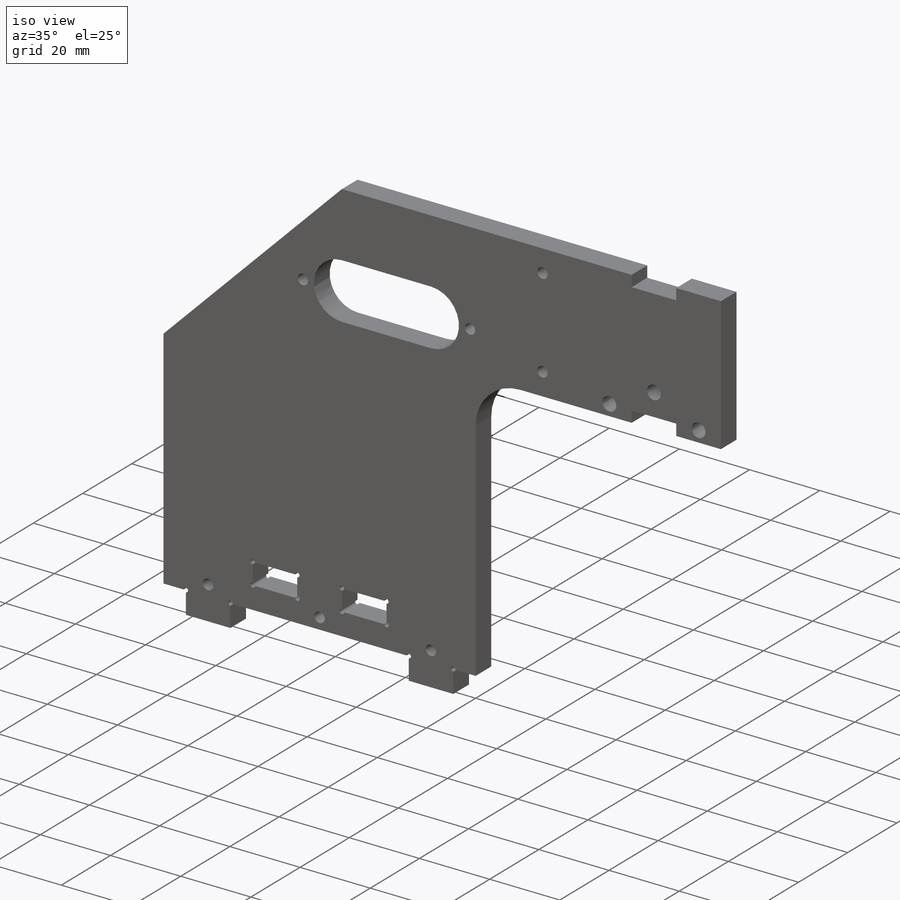
[diagram: iso view]
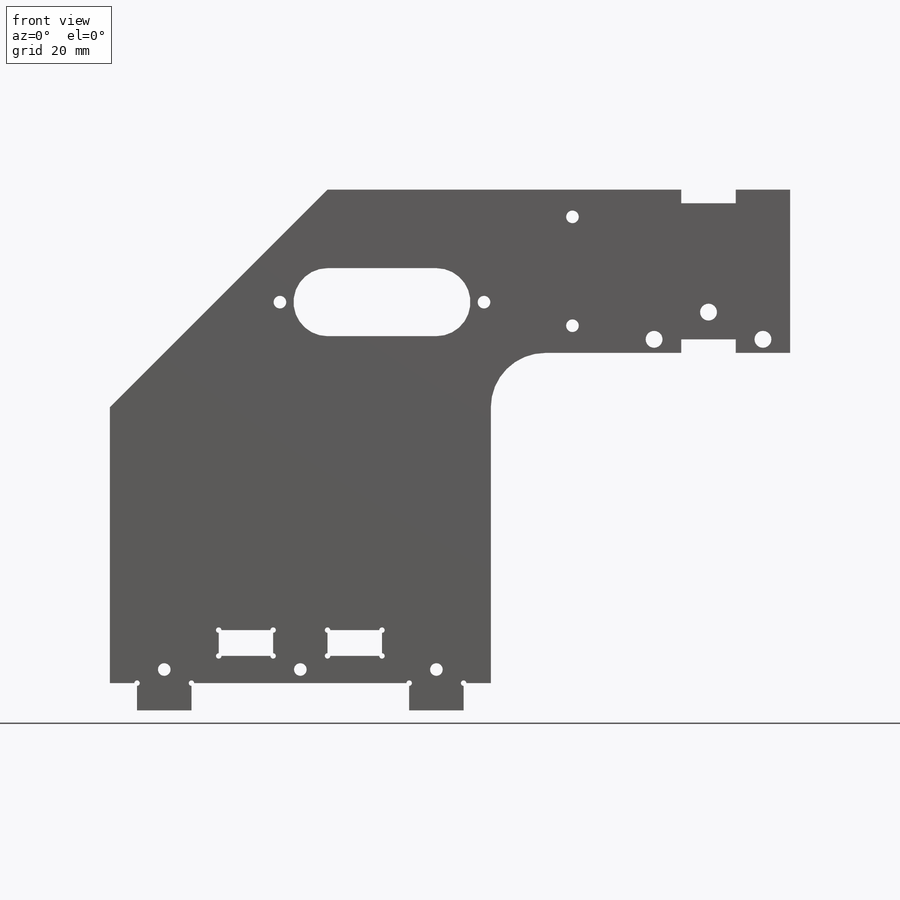
[diagram: front view]
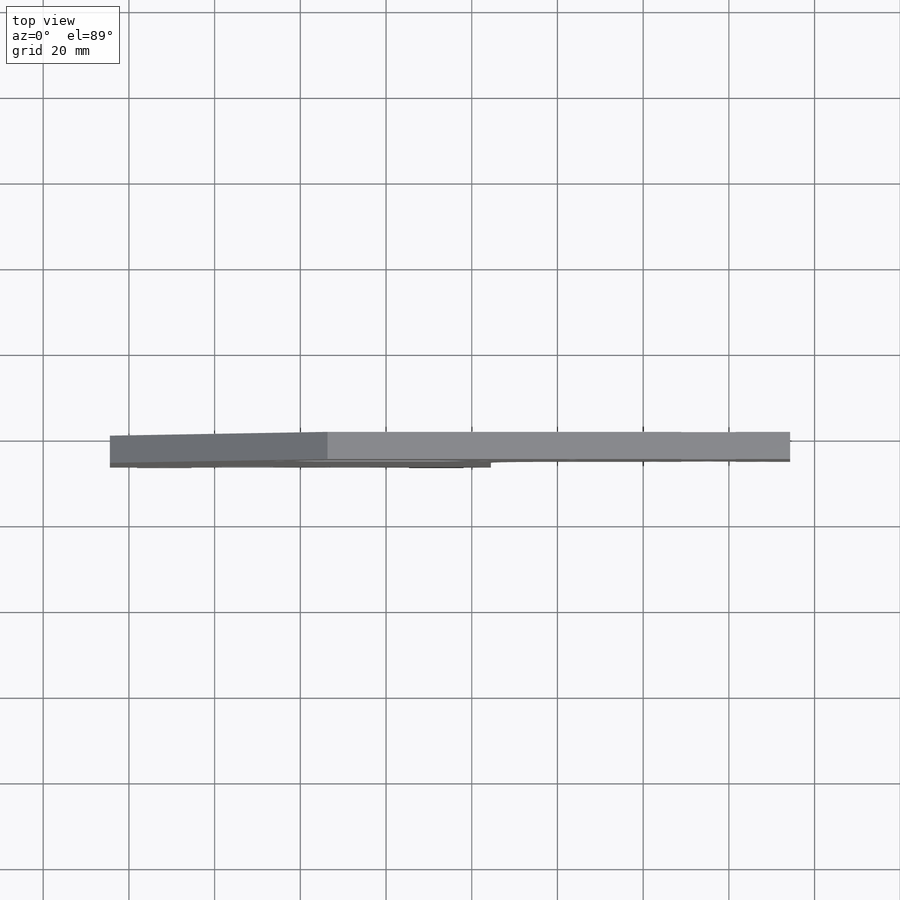
[diagram: top view]
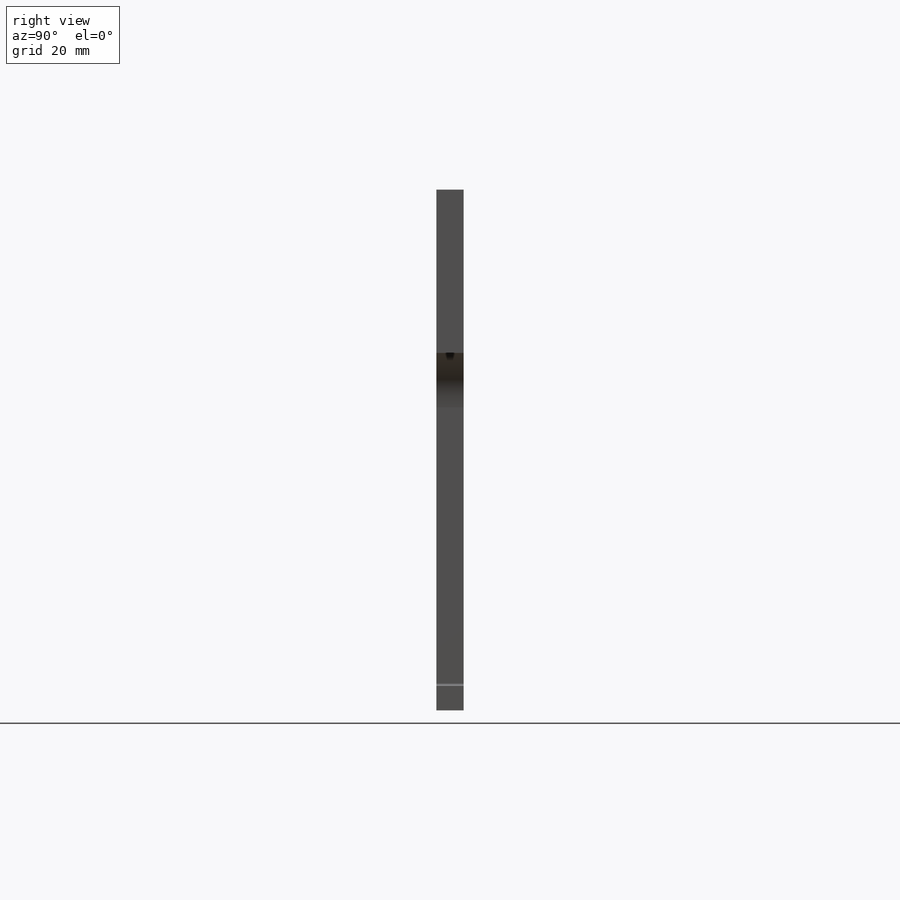
[diagram: right view]
SOLIDWORKS PART (.sldprt)
format: sldprt  version: not decoded by parser v0  size: 522,752 bytes
history: native  units: mm
features: sketch x13, cut_extrude x3, hole x3, material x1, extrude x1, chamfer x1, fillet x1 + 1 further entry (+12 scaffold rows collapsed)
feature tree (36):
  scaffold x12  (default folders/planes/origin — collapsed)
  material  "Acrylic (Medium-high impact)"
  sketch  "Sketch1"  dims[c1.D19=25.4mm c1.D20=1.27mm c1.D21=0.635mm c1.D1=6.35mm c1.D2=6.35mm c1.D3=12.7mm c1.D4=12.7mm c1.D5=50.8mm c1.D6=25.4mm c1.D7=25.4mm c1.D8=25.4mm c1.D9=31.75mm c1.D10=25.4mm c1.D11=25.4mm c1.D12=38.1mm c1.D13=38.1mm c1.D14=42.0mm c1.D15=42.0mm c1.D16=22.352mm c2.D6=38.1mm c2.D17=19.05mm c3.D6=6.35mm c3.D18=6.35mm c3.D21=25.4mm c3.D19=57.15mm c4.D6=6.35mm c4.D19=12.7mm c4.D21=6.0198mm c4.D22=3.175mm c4.D23=12.7mm c4.D24=6.35mm c4.D25=12.7mm c4.D26=3.175mm c4.D3=12.7mm c5.D6=6.35mm c5.D18=6.35mm c5.D20=6.0198mm c5.D19=6.35mm c5.D21=19.05mm c5.D27=12.7mm c5.D28=12.7mm c5.D29=25.4mm]
  extrude  "Boss-Extrude1"  Depth=6.35mm
  sketch  "Sketch10"  dims[D1=1.27mm]
  sketch  "Sketch13"  dims[D1=1.27mm]
  cut_extrude  "Cut-Extrude2"  [1 undecoded]
  "Sketch-Pattern1"
  chamfer  "Chamfer1"  Distance=50.8mm Angle=45deg
  fillet  "Fillet2"  Radius=12.7mm
  sketch  "Sketch5"  dims[D1=6.35mm D2=6.35mm D3=0.254mm]
  hole  "#4 Clearance Hole1"  Diameter=2.9464mm Depth=6.35mm
  sketch  "Sketch7"
  sketch  "Sketch6"  dims[hole-wizard template sketch: 50 standard entries collapsed; hole parameters above]
  sketch  "Sketch8"  dims[D1=50.8mm D2=6.35mm D3=6.35mm D4=25.4mm D5=6.35mm]
  sketch  "Sketch14"  dims[c1.D2=3.937mm c1.D3=3.9624mm c1.D4=3.9624mm c1.D5=5.588mm c1.D1=38.1mm c2.D3=9.525mm c2.D4=25.4mm]
  cut_extrude  "Cut-Extrude3"  [1 undecoded]
  hole  "#4 Clearance Hole2"  Diameter=2.9464mm Depth=6.35mm
  sketch  "Sketch17"
  sketch  "Sketch16"  dims[hole-wizard template sketch: 50 standard entries collapsed; hole parameters above]
  sketch  "Sketch18"  dims[c1.D1=25.4mm c1.D2=15.875mm c1.D3=63.5mm c1.D4=12.7mm c2.D3=88.9mm c2.D4=19.05mm]
  cut_extrude  "Cut-Extrude4"  [1 undecoded]
  hole  "#4 Clearance Hole3"  Diameter=2.9464mm Depth=6.35mm
  sketch  "Sketch20"  dims[D1=3.175mm D2=3.175mm]
  sketch  "Sketch19"  dims[hole-wizard template sketch: 50 standard entries collapsed; hole parameters above]
decode coverage: 17 of 22 modeling features carry decoded parameters; 1 rows unclassified (native names shown)
note: ~ marks probable driven/reference dimensions
note: 3 parameter values undecoded
summary: no parameter record found for 3 features
note: suppression state not decoded; provenance and decode notes live in map.json
